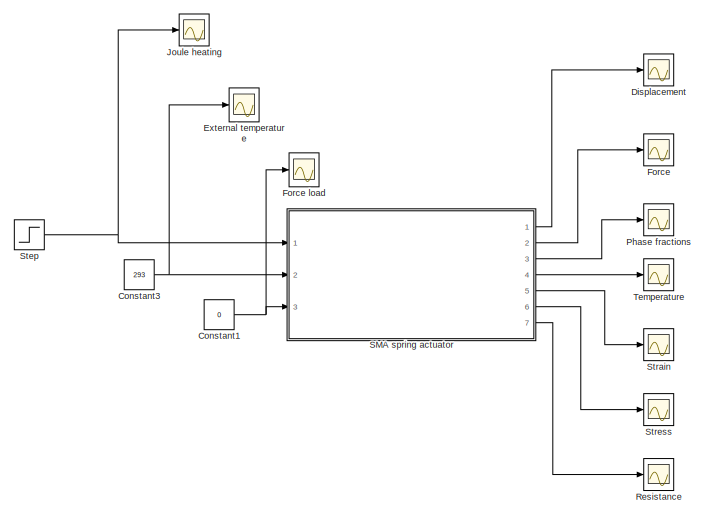
[diagram: root canvas - part 1/2, middle right region]
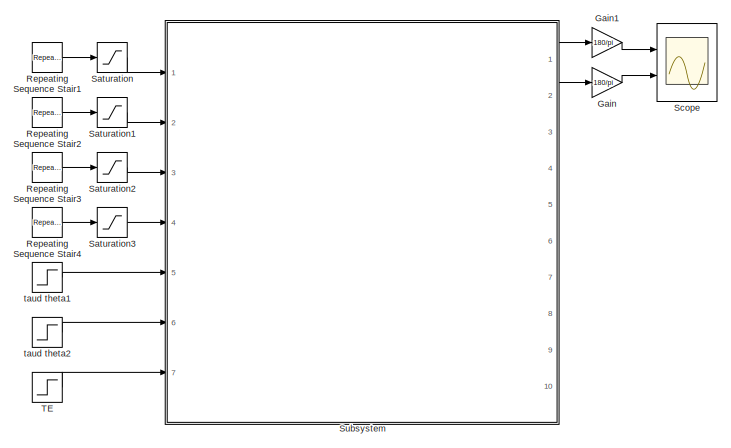
[diagram: root canvas - part 2/2, bottom left region]
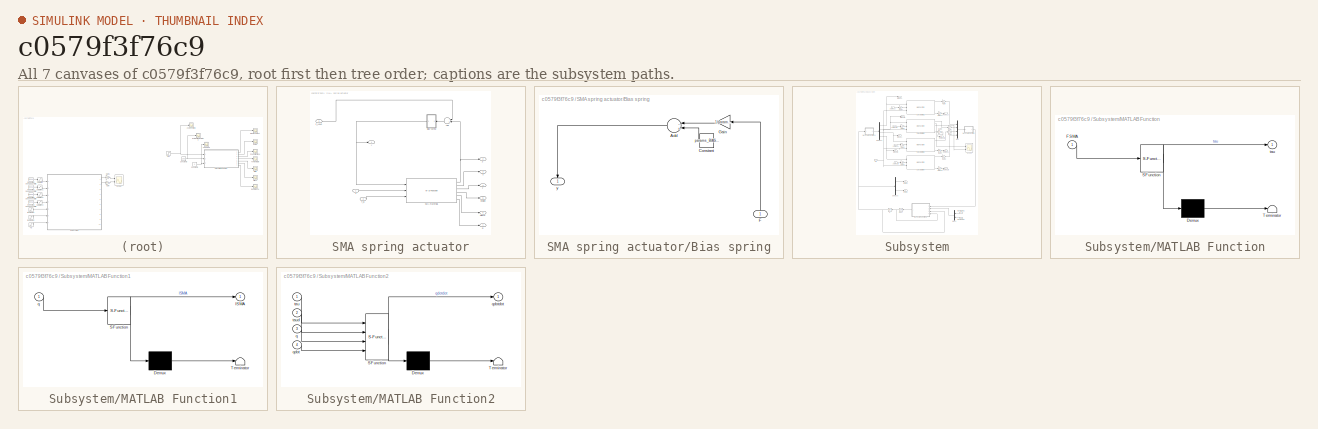
[diagram: thumbnail index - all 7 canvases of the model, root first then tree order]
MODEL slx_c0579f3f76c9
KIND model
CONFIG AbsTol = 1e-9
CONFIG EnableMultiTasking = on
CONFIG FixedStep = auto
CONFIG MaxStep = auto
CONFIG MinStep = auto
CONFIG RelTol = 1e-9
CONFIG SampleTimeConstraint = Unconstrained
CONFIG Solver = ode15s
CONFIG SolverName = ode15s
CONFIG StartTime = 0.0
CONFIG StopTime = 50
BLOCK [Scope]  Force load
  NumInputPorts = 1
  Ports = [1]
  ScopeSpecificationString = Simulink.scopes.TimeScopeBlockCfg('CurrentConfiguration', extmgr.ConfigurationSet(extmgr.Configuration('Core','General UI',true,'FigureColor',[0.156862745098039 0.156862745098039 0.156862745098039]),extmgr.Configuration('Core','Source UI',true),extmgr.Configuration('Sources','WiredSimulink',true,'DataLoggingVariableName','ScopeData1','DataLoggingSaveFormat','StructureWithTime','DataLoggingDecimati...<+2711ch>
BLOCK [Constant] Constant1
  Value = 0
BLOCK [Constant] Constant3
  Value = 293
BLOCK [Scope] Displacement
  NumInputPorts = 1
  Ports = [1]
  ScopeSpecificationString = Simulink.scopes.TimeScopeBlockCfg('CurrentConfiguration', extmgr.ConfigurationSet(extmgr.Configuration('Core','General UI',true,'FigureColor',[0.156862745098039 0.156862745098039 0.156862745098039]),extmgr.Configuration('Core','Source UI',true),extmgr.Configuration('Sources','WiredSimulink',true,'DataLoggingSaveFormat','StructureWithTime','DataLoggingDecimation','1','DataLoggingDecimateData',true)...<+2773ch>
BLOCK [Scope] External temperature
  NumInputPorts = 1
  Ports = [1]
  ScopeSpecificationString = Simulink.scopes.TimeScopeBlockCfg('CurrentConfiguration', extmgr.ConfigurationSet(extmgr.Configuration('Core','General UI',true,'FigureColor',[0.156862745098039 0.156862745098039 0.156862745098039]),extmgr.Configuration('Core','Source UI',true),extmgr.Configuration('Sources','WiredSimulink',true,'DataLoggingVariableName','ScopeData2','DataLoggingSaveFormat','StructureWithTime','DataLoggingDecimati...<+2711ch>
BLOCK [Scope] Force
  NumInputPorts = 1
  Ports = [1]
  ScopeSpecificationString = Simulink.scopes.TimeScopeBlockCfg('CurrentConfiguration', extmgr.ConfigurationSet(extmgr.Configuration('Core','General UI',true,'FigureColor',[0.156862745098039 0.156862745098039 0.156862745098039]),extmgr.Configuration('Core','Source UI',true),extmgr.Configuration('Sources','WiredSimulink',true,'DataLoggingVariableName','ScopeData3','DataLoggingSaveFormat','StructureWithTime','DataLoggingDecimati...<+2806ch>
BLOCK [Gain] Gain
  Gain = 180/pi
  OutDataTypeStr = Inherit: Inherit via internal rule
  ParamDataTypeStr = Inherit: Inherit via internal rule
  SaturateOnIntegerOverflow = off
BLOCK [Gain] Gain1
  Gain = 180/pi
  OutDataTypeStr = Inherit: Inherit via internal rule
  ParamDataTypeStr = Inherit: Inherit via internal rule
  SaturateOnIntegerOverflow = off
BLOCK [Scope] Joule heating
  NumInputPorts = 1
  Ports = [1]
  ScopeSpecificationString = Simulink.scopes.TimeScopeBlockCfg('CurrentConfiguration', extmgr.ConfigurationSet(extmgr.Configuration('Core','General UI',true,'FigureColor',[0.156862745098039 0.156862745098039 0.156862745098039]),extmgr.Configuration('Core','Source UI',true),extmgr.Configuration('Sources','WiredSimulink',true,'DataLoggingVariableName','ScopeData1','DataLoggingSaveFormat','StructureWithTime','DataLoggingDecimati...<+2711ch>
BLOCK [Scope] Phase fractions
  NumInputPorts = 1
  Ports = [1]
  ScopeSpecificationString = Simulink.scopes.TimeScopeBlockCfg('CurrentConfiguration', extmgr.ConfigurationSet(extmgr.Configuration('Core','General UI',true,'FigureColor',[0.156862745098039 0.156862745098039 0.156862745098039]),extmgr.Configuration('Core','Source UI',true),extmgr.Configuration('Sources','WiredSimulink',true,'DataLoggingVariableName','ScopeData4','DataLoggingSaveFormat','StructureWithTime','DataLoggingDecimati...<+2838ch>
BLOCK [Reference] Repeating Sequence Stair1  REF=simulink/Sources/Repeating
Sequence
Stair
  Ports = [0, 1]
  SourceBlock = simulink/Sources/Repeating\nSequence\nStair
  SourceProductBaseCode = SL
  SourceProductName = Simulink
  SourceType = Repeating Sequence Stair
BLOCK [Reference] Repeating Sequence Stair2  REF=simulink/Sources/Repeating
Sequence
Stair
  Ports = [0, 1]
  SourceBlock = simulink/Sources/Repeating\nSequence\nStair
  SourceProductBaseCode = SL
  SourceProductName = Simulink
  SourceType = Repeating Sequence Stair
BLOCK [Reference] Repeating Sequence Stair3  REF=simulink/Sources/Repeating
Sequence
Stair
  Ports = [0, 1]
  SourceBlock = simulink/Sources/Repeating\nSequence\nStair
  SourceProductBaseCode = SL
  SourceProductName = Simulink
  SourceType = Repeating Sequence Stair
BLOCK [Reference] Repeating Sequence Stair4  REF=simulink/Sources/Repeating
Sequence
Stair
  Ports = [0, 1]
  SourceBlock = simulink/Sources/Repeating\nSequence\nStair
  SourceProductBaseCode = SL
  SourceProductName = Simulink
  SourceType = Repeating Sequence Stair
BLOCK [Scope] Resistance
  NumInputPorts = 1
  Ports = [1]
  ScopeSpecificationString = Simulink.scopes.TimeScopeBlockCfg('CurrentConfiguration', extmgr.ConfigurationSet(extmgr.Configuration('Core','General UI',true,'FigureColor',[0.156862745098039 0.156862745098039 0.156862745098039]),extmgr.Configuration('Core','Source UI',true),extmgr.Configuration('Sources','WiredSimulink',true,'DataLoggingVariableName','ScopeData8','DataLoggingSaveFormat','StructureWithTime','DataLoggingDecimati...<+2818ch>
BLOCK [SubSystem] SMA spring actuator
  Ports = [3, 7]
  RequestExecContextInheritance = off
  Variant = off
BLOCK [Sum] SMA spring actuator/Add
  InputSameDT = off
  Inputs = -+
  OutDataTypeStr = Inherit: Inherit via internal rule
  Ports = [2, 1]
  SaturateOnIntegerOverflow = off
BLOCK [SubSystem] SMA spring actuator/Bias spring
  Ports = [1, 1]
  RequestExecContextInheritance = off
  Variant = off
BLOCK [Sum] SMA spring actuator/Bias spring/Add
  InputSameDT = off
  Inputs = -+
  OutDataTypeStr = Inherit: Inherit via internal rule
  Ports = [2, 1]
  SaturateOnIntegerOverflow = off
BLOCK [Constant] SMA spring actuator/Bias spring/Constant
  Value = params_BIAS.y0s
BLOCK [Inport] SMA spring actuator/Bias spring/F
  IconDisplay = Port number
BLOCK [Gain] SMA spring actuator/Bias spring/Gain
  Gain = 1/params_BIAS.ks
  OutDataTypeStr = Inherit: Inherit via internal rule
  ParamDataTypeStr = Inherit: Inherit via internal rule
  SaturateOnIntegerOverflow = off
BLOCK [Outport] SMA spring actuator/Bias spring/y
  IconDisplay = Port number
BLOCK [Outport] SMA spring actuator/F
  IconDisplay = Port number
  Port = 2
BLOCK [Inport] SMA spring actuator/F_LOAD
  IconDisplay = Port number
  Port = 3
BLOCK [Inport] SMA spring actuator/J
  IconDisplay = Port number
BLOCK [Outport] SMA spring actuator/R
  IconDisplay = Port number
  Port = 7
BLOCK [M-S-Function] SMA spring actuator/SMA material1
  FunctionName = sSMA_displacementIn_PC2
  Parameters = params_PC2, initConds_PC2
  Ports = [3, 6]
BLOCK [Outport] SMA spring actuator/T
  IconDisplay = Port number
  Port = 4
BLOCK [Inport] SMA spring actuator/T_E
  IconDisplay = Port number
  Port = 2
BLOCK [Outport] SMA spring actuator/epsilon
  IconDisplay = Port number
  Port = 5
BLOCK [Outport] SMA spring actuator/sigma
  IconDisplay = Port number
  Port = 6
BLOCK [Outport] SMA spring actuator/x
  IconDisplay = Port number
  Port = 3
BLOCK [Outport] SMA spring actuator/y
  IconDisplay = Port number
BLOCK [Saturate] Saturation
  InputPortMap = u0
  LowerLimit = 0
  Ports = [1, 1]
  UpperLimit = 2
BLOCK [Saturate] Saturation1
  InputPortMap = u0
  LowerLimit = 0
  Ports = [1, 1]
  UpperLimit = 2
BLOCK [Saturate] Saturation2
  InputPortMap = u0
  LowerLimit = 0
  Ports = [1, 1]
  UpperLimit = 2
BLOCK [Saturate] Saturation3
  InputPortMap = u0
  LowerLimit = 0
  Ports = [1, 1]
  UpperLimit = 2
BLOCK [Scope] Scope
  NumInputPorts = 2
  Ports = [2]
  ScopeSpecificationString = Simulink.scopes.TimeScopeBlockCfg('CurrentConfiguration', extmgr.ConfigurationSet(extmgr.Configuration('Core','General UI',true),extmgr.Configuration('Core','Source UI',true),extmgr.Configuration('Sources','WiredSimulink',true,'DataLoggingVariableName','ScopeData1'),extmgr.Configuration('Visuals','Time Domain',true,'SerializedDisplays',{struct('MinYLimReal','-113.2892','MaxYLimReal','113.29104','Y...<+2026ch>
BLOCK [Step] Step
  After = 0.25
  SampleTime = 0
  Time = 0
BLOCK [Scope] Strain
  NumInputPorts = 1
  Ports = [1]
  ScopeSpecificationString = Simulink.scopes.TimeScopeBlockCfg('CurrentConfiguration', extmgr.ConfigurationSet(extmgr.Configuration('Core','General UI',true,'FigureColor',[0.156862745098039 0.156862745098039 0.156862745098039]),extmgr.Configuration('Core','Source UI',true),extmgr.Configuration('Sources','WiredSimulink',true,'DataLoggingVariableName','ScopeData6','DataLoggingSaveFormat','StructureWithTime','DataLoggingDecimati...<+2729ch>
BLOCK [Scope] Stress
  NumInputPorts = 1
  Ports = [1]
  ScopeSpecificationString = Simulink.scopes.TimeScopeBlockCfg('CurrentConfiguration', extmgr.ConfigurationSet(extmgr.Configuration('Core','General UI',true,'FigureColor',[0.156862745098039 0.156862745098039 0.156862745098039]),extmgr.Configuration('Core','Source UI',true),extmgr.Configuration('Sources','WiredSimulink',true,'DataLoggingVariableName','ScopeData7','DataLoggingSaveFormat','StructureWithTime','DataLoggingDecimati...<+2759ch>
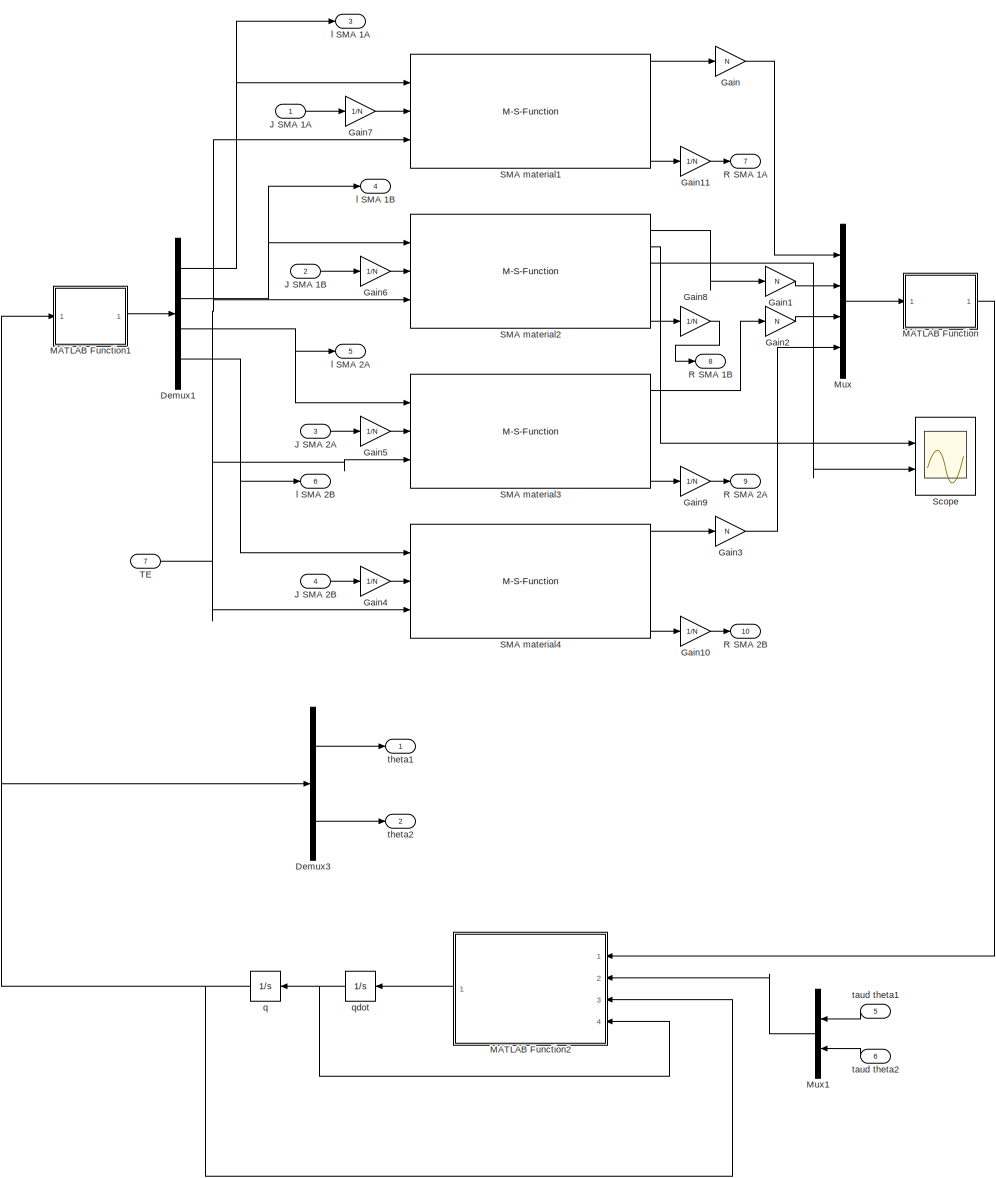
[diagram: Subsystem - part 1/1, most of the canvas]
BLOCK [SubSystem] Subsystem
  Ports = [7, 10]
  RequestExecContextInheritance = off
  Variant = off
BLOCK [Demux] Subsystem/Demux1
  DisplayOption = bar
  Ports = [1, 4]
BLOCK [Demux] Subsystem/Demux3
  DisplayOption = bar
  Outputs = 2
  Ports = [1, 2]
BLOCK [Gain] Subsystem/Gain
  Gain = N
  OutDataTypeStr = Inherit: Inherit via internal rule
  ParamDataTypeStr = Inherit: Inherit via internal rule
  SaturateOnIntegerOverflow = off
BLOCK [Gain] Subsystem/Gain1
  Gain = N
  OutDataTypeStr = Inherit: Inherit via internal rule
  ParamDataTypeStr = Inherit: Inherit via internal rule
  SaturateOnIntegerOverflow = off
BLOCK [Gain] Subsystem/Gain10
  Gain = 1/N
  OutDataTypeStr = Inherit: Inherit via internal rule
  ParamDataTypeStr = Inherit: Inherit via internal rule
  SaturateOnIntegerOverflow = off
BLOCK [Gain] Subsystem/Gain11
  Gain = 1/N
  OutDataTypeStr = Inherit: Inherit via internal rule
  ParamDataTypeStr = Inherit: Inherit via internal rule
  SaturateOnIntegerOverflow = off
BLOCK [Gain] Subsystem/Gain2
  Gain = N
  OutDataTypeStr = Inherit: Inherit via internal rule
  ParamDataTypeStr = Inherit: Inherit via internal rule
  SaturateOnIntegerOverflow = off
BLOCK [Gain] Subsystem/Gain3
  Gain = N
  OutDataTypeStr = Inherit: Inherit via internal rule
  ParamDataTypeStr = Inherit: Inherit via internal rule
  SaturateOnIntegerOverflow = off
BLOCK [Gain] Subsystem/Gain4
  Gain = 1/N
  OutDataTypeStr = Inherit: Inherit via internal rule
  ParamDataTypeStr = Inherit: Inherit via internal rule
  SaturateOnIntegerOverflow = off
BLOCK [Gain] Subsystem/Gain5
  Gain = 1/N
  OutDataTypeStr = Inherit: Inherit via internal rule
  ParamDataTypeStr = Inherit: Inherit via internal rule
  SaturateOnIntegerOverflow = off
BLOCK [Gain] Subsystem/Gain6
  Gain = 1/N
  OutDataTypeStr = Inherit: Inherit via internal rule
  ParamDataTypeStr = Inherit: Inherit via internal rule
  SaturateOnIntegerOverflow = off
BLOCK [Gain] Subsystem/Gain7
  Gain = 1/N
  OutDataTypeStr = Inherit: Inherit via internal rule
  ParamDataTypeStr = Inherit: Inherit via internal rule
  SaturateOnIntegerOverflow = off
BLOCK [Gain] Subsystem/Gain8
  Gain = 1/N
  OutDataTypeStr = Inherit: Inherit via internal rule
  ParamDataTypeStr = Inherit: Inherit via internal rule
  SaturateOnIntegerOverflow = off
BLOCK [Gain] Subsystem/Gain9
  Gain = 1/N
  OutDataTypeStr = Inherit: Inherit via internal rule
  ParamDataTypeStr = Inherit: Inherit via internal rule
  SaturateOnIntegerOverflow = off
BLOCK [Inport] Subsystem/J SMA 1A
  IconDisplay = Port number
BLOCK [Inport] Subsystem/J SMA 1B
  IconDisplay = Port number
  Port = 2
BLOCK [Inport] Subsystem/J SMA 2A
  IconDisplay = Port number
  Port = 3
BLOCK [Inport] Subsystem/J SMA 2B
  IconDisplay = Port number
  Port = 4
BLOCK [SubSystem] Subsystem/MATLAB Function
  ErrorFcn = Stateflow.Translate.translate
  PermitHierarchicalResolution = ExplicitOnly
  Ports = [1, 1]
  RequestExecContextInheritance = off
  SFBlockType = MATLAB Function
  TreatAsAtomicUnit = on
  Variant = off
BLOCK [Demux] Subsystem/MATLAB Function/ Demux 
  Outputs = 1
  Ports = [1, 1]
BLOCK [S-Function] Subsystem/MATLAB Function/ SFunction 
  EnableBusSupport = on
  FunctionName = sf_sfun
  Parameters = r1,r2
  PortCounts = [1 2]
  Ports = [1, 2]
  SFcnIsStateOwnerBlock = off
  SFunctionDeploymentMode = off
  Tag = Stateflow S-Function SMAWing 2
BLOCK [Terminator] Subsystem/MATLAB Function/ Terminator 
BLOCK [Inport] Subsystem/MATLAB Function/FSMA
  IconDisplay = Port number
BLOCK [Outport] Subsystem/MATLAB Function/tau
  IconDisplay = Port number
BLOCK [SubSystem] Subsystem/MATLAB Function1
  ErrorFcn = Stateflow.Translate.translate
  PermitHierarchicalResolution = ExplicitOnly
  Ports = [1, 1]
  RequestExecContextInheritance = off
  SFBlockType = MATLAB Function
  TreatAsAtomicUnit = on
  Variant = off
BLOCK [Demux] Subsystem/MATLAB Function1/ Demux 
  Outputs = 1
  Ports = [1, 1]
BLOCK [S-Function] Subsystem/MATLAB Function1/ SFunction 
  EnableBusSupport = on
  FunctionName = sf_sfun
  Parameters = Delta,params_PC2,r1,r2
  PortCounts = [1 2]
  Ports = [1, 2]
  SFcnIsStateOwnerBlock = off
  SFunctionDeploymentMode = off
  Tag = Stateflow S-Function SMAWing 1
BLOCK [Terminator] Subsystem/MATLAB Function1/ Terminator 
BLOCK [Outport] Subsystem/MATLAB Function1/lSMA
  IconDisplay = Port number
  VectorParamsAs1DForOutWhenUnconnected = on
BLOCK [Inport] Subsystem/MATLAB Function1/q
  IconDisplay = Port number
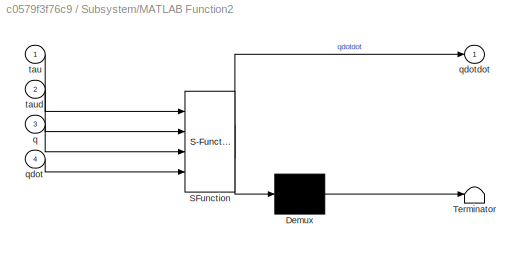
BLOCK [SubSystem] Subsystem/MATLAB Function2
  ErrorFcn = Stateflow.Translate.translate
  PermitHierarchicalResolution = ExplicitOnly
  Ports = [4, 1]
  RequestExecContextInheritance = off
  SFBlockType = MATLAB Function
  TreatAsAtomicUnit = on
  Variant = off
BLOCK [Demux] Subsystem/MATLAB Function2/ Demux 
  Outputs = 1
  Ports = [1, 1]
BLOCK [S-Function] Subsystem/MATLAB Function2/ SFunction 
  EnableBusSupport = on
  FunctionName = sf_sfun
  Parameters = I1,I2,b1,b2,l1,l2,m1,m2
  PortCounts = [4 2]
  Ports = [4, 2]
  SFcnIsStateOwnerBlock = off
  SFunctionDeploymentMode = off
  Tag = Stateflow S-Function SMAWing 3
BLOCK [Terminator] Subsystem/MATLAB Function2/ Terminator 
BLOCK [Inport] Subsystem/MATLAB Function2/q
  IconDisplay = Port number
  Port = 3
BLOCK [Inport] Subsystem/MATLAB Function2/qdot
  IconDisplay = Port number
  Port = 4
BLOCK [Outport] Subsystem/MATLAB Function2/qdotdot
  IconDisplay = Port number
  VectorParamsAs1DForOutWhenUnconnected = on
BLOCK [Inport] Subsystem/MATLAB Function2/tau
  IconDisplay = Port number
BLOCK [Inport] Subsystem/MATLAB Function2/taud
  IconDisplay = Port number
  Port = 2
BLOCK [Mux] Subsystem/Mux
  DisplayOption = bar
  Ports = [4, 1]
BLOCK [Mux] Subsystem/Mux1
  DisplayOption = bar
  Inputs = 2
  Ports = [2, 1]
BLOCK [Outport] Subsystem/R SMA 1A
  IconDisplay = Port number
  Port = 7
  VectorParamsAs1DForOutWhenUnconnected = on
BLOCK [Outport] Subsystem/R SMA 1B
  IconDisplay = Port number
  Port = 8
  VectorParamsAs1DForOutWhenUnconnected = on
BLOCK [Outport] Subsystem/R SMA 2A
  IconDisplay = Port number
  Port = 9
  VectorParamsAs1DForOutWhenUnconnected = on
BLOCK [Outport] Subsystem/R SMA 2B
  IconDisplay = Port number
  Port = 10
  VectorParamsAs1DForOutWhenUnconnected = on
BLOCK [M-S-Function] Subsystem/SMA material1
  FunctionName = sSMA_displacementIn_PC2
  Parameters = params_PC2, initConds_PC2
  Ports = [3, 6]
BLOCK [M-S-Function] Subsystem/SMA material2
  FunctionName = sSMA_displacementIn_PC2
  Parameters = params_PC2, initConds_PC2
  Ports = [3, 6]
BLOCK [M-S-Function] Subsystem/SMA material3
  FunctionName = sSMA_displacementIn_PC2
  Parameters = params_PC2, initConds_PC2
  Ports = [3, 6]
BLOCK [M-S-Function] Subsystem/SMA material4
  FunctionName = sSMA_displacementIn_PC2
  Parameters = params_PC2, initConds_PC2
  Ports = [3, 6]
BLOCK [Scope] Subsystem/Scope
  NumInputPorts = 2
  Ports = [2]
  ScopeSpecificationString = Simulink.scopes.TimeScopeBlockCfg('CurrentConfiguration', extmgr.ConfigurationSet(extmgr.Configuration('Core','General UI',true),extmgr.Configuration('Core','Source UI',true),extmgr.Configuration('Sources','WiredSimulink',true,'DataLoggingVariableName','ScopeData1'),extmgr.Configuration('Visuals','Time Domain',true,'SerializedDisplays',{struct('MinYLimReal','-0.12479','MaxYLimReal','1.12315','YLab...<+2084ch>
BLOCK [Inport] Subsystem/TE
  IconDisplay = Port number
  Port = 7
BLOCK [Outport] Subsystem/l SMA 1A
  IconDisplay = Port number
  Port = 3
  VectorParamsAs1DForOutWhenUnconnected = on
BLOCK [Outport] Subsystem/l SMA 1B
  IconDisplay = Port number
  Port = 4
  VectorParamsAs1DForOutWhenUnconnected = on
BLOCK [Outport] Subsystem/l SMA 2A
  IconDisplay = Port number
  Port = 5
  VectorParamsAs1DForOutWhenUnconnected = on
BLOCK [Outport] Subsystem/l SMA 2B
  IconDisplay = Port number
  Port = 6
  VectorParamsAs1DForOutWhenUnconnected = on
BLOCK [Integrator] Subsystem/q
  InitialCondition = [0;0]
  LowerSaturationLimit = -r
  Ports = [1, 1]
  UpperSaturationLimit = r
BLOCK [Integrator] Subsystem/qdot
  InitialCondition = [0;0]
  Ports = [1, 1]
BLOCK [Inport] Subsystem/taud theta1
  IconDisplay = Port number
  Port = 5
BLOCK [Inport] Subsystem/taud theta2
  IconDisplay = Port number
  Port = 6
BLOCK [Outport] Subsystem/theta1
  IconDisplay = Port number
  VectorParamsAs1DForOutWhenUnconnected = on
BLOCK [Outport] Subsystem/theta2
  IconDisplay = Port number
  Port = 2
  VectorParamsAs1DForOutWhenUnconnected = on
BLOCK [Step] TE
  After = 293
  Before = 293
  SampleTime = 0
  Time = 0
BLOCK [Scope] Temperature
  NumInputPorts = 1
  Ports = [1]
  ScopeSpecificationString = Simulink.scopes.TimeScopeBlockCfg('CurrentConfiguration', extmgr.ConfigurationSet(extmgr.Configuration('Core','General UI',true,'FigureColor',[0.156862745098039 0.156862745098039 0.156862745098039]),extmgr.Configuration('Core','Source UI',true),extmgr.Configuration('Sources','WiredSimulink',true,'DataLoggingVariableName','ScopeData5','DataLoggingSaveFormat','StructureWithTime','DataLoggingDecimati...<+2828ch>
BLOCK [Step] taud theta1
  After = 0
  SampleTime = 0
  Time = 0
BLOCK [Step] taud theta2
  After = 0
  SampleTime = 0
  Time = 0
NET Constant1:1 ->  Force load:1, SMA spring actuator:3
NET Constant3:1 -> External temperature:1, SMA spring actuator:2
LINE Gain1:1 -> Scope:1
LINE Gain:1 -> Scope:2
LINE Repeating Sequence Stair1:1 -> Saturation:1
LINE Repeating Sequence Stair2:1 -> Saturation1:1
LINE Repeating Sequence Stair3:1 -> Saturation2:1
LINE Repeating Sequence Stair4:1 -> Saturation3:1
LINE SMA spring actuator/Add:1 -> SMA spring actuator/Bias spring:1
LINE SMA spring actuator/Bias spring/Add:1 -> SMA spring actuator/Bias spring/y:1
LINE SMA spring actuator/Bias spring/Constant:1 -> SMA spring actuator/Bias spring/Add:2
LINE SMA spring actuator/Bias spring/F:1 -> SMA spring actuator/Bias spring/Gain:1
LINE SMA spring actuator/Bias spring/Gain:1 -> SMA spring actuator/Bias spring/Add:1
NET SMA spring actuator/Bias spring:1 -> SMA spring actuator/SMA material1:1, SMA spring actuator/y:1
LINE SMA spring actuator/F_LOAD:1 -> SMA spring actuator/Add:1
LINE SMA spring actuator/J:1 -> SMA spring actuator/SMA material1:2
NET SMA spring actuator/SMA material1:1 -> SMA spring actuator/Add:2, SMA spring actuator/F:1
LINE SMA spring actuator/SMA material1:2 -> SMA spring actuator/x:1
LINE SMA spring actuator/SMA material1:3 -> SMA spring actuator/T:1
LINE SMA spring actuator/SMA material1:4 -> SMA spring actuator/epsilon:1
LINE SMA spring actuator/SMA material1:5 -> SMA spring actuator/sigma:1
LINE SMA spring actuator/SMA material1:6 -> SMA spring actuator/R:1
LINE SMA spring actuator/T_E:1 -> SMA spring actuator/SMA material1:3
LINE SMA spring actuator:1 -> Displacement:1
LINE SMA spring actuator:2 -> Force:1
LINE SMA spring actuator:3 -> Phase fractions:1
LINE SMA spring actuator:4 -> Temperature:1
LINE SMA spring actuator:5 -> Strain:1
LINE SMA spring actuator:6 -> Stress:1
LINE SMA spring actuator:7 -> Resistance:1
LINE Saturation1:1 -> Subsystem:2
LINE Saturation2:1 -> Subsystem:3
LINE Saturation3:1 -> Subsystem:4
LINE Saturation:1 -> Subsystem:1
NET Step:1 -> Joule heating:1, SMA spring actuator:1
NET Subsystem/Demux1:1 -> Subsystem/SMA material1:1, Subsystem/l SMA 1A:1
NET Subsystem/Demux1:2 -> Subsystem/SMA material2:1, Subsystem/l SMA 1B:1
NET Subsystem/Demux1:3 -> Subsystem/SMA material3:1, Subsystem/l SMA 2A:1
NET Subsystem/Demux1:4 -> Subsystem/SMA material4:1, Subsystem/l SMA 2B:1
LINE Subsystem/Demux3:1 -> Subsystem/theta1:1
LINE Subsystem/Demux3:2 -> Subsystem/theta2:1
LINE Subsystem/Gain10:1 -> Subsystem/R SMA 2B:1
LINE Subsystem/Gain11:1 -> Subsystem/R SMA 1A:1
LINE Subsystem/Gain1:1 -> Subsystem/Mux:2
LINE Subsystem/Gain2:1 -> Subsystem/Mux:3
LINE Subsystem/Gain3:1 -> Subsystem/Mux:4
LINE Subsystem/Gain4:1 -> Subsystem/SMA material4:2
LINE Subsystem/Gain5:1 -> Subsystem/SMA material3:2
LINE Subsystem/Gain6:1 -> Subsystem/SMA material2:2
LINE Subsystem/Gain7:1 -> Subsystem/SMA material1:2
LINE Subsystem/Gain8:1 -> Subsystem/R SMA 1B:1
LINE Subsystem/Gain9:1 -> Subsystem/R SMA 2A:1
LINE Subsystem/Gain:1 -> Subsystem/Mux:1
LINE Subsystem/J SMA 1A:1 -> Subsystem/Gain7:1
LINE Subsystem/J SMA 1B:1 -> Subsystem/Gain6:1
LINE Subsystem/J SMA 2A:1 -> Subsystem/Gain5:1
LINE Subsystem/J SMA 2B:1 -> Subsystem/Gain4:1
LINE Subsystem/MATLAB Function1:1 -> Subsystem/Demux1:1
LINE Subsystem/MATLAB Function2:1 -> Subsystem/qdot:1
LINE Subsystem/MATLAB Function:1 -> Subsystem/MATLAB Function2:1
LINE Subsystem/Mux1:1 -> Subsystem/MATLAB Function2:2
LINE Subsystem/Mux:1 -> Subsystem/MATLAB Function:1
LINE Subsystem/SMA material1:1 -> Subsystem/Gain:1
LINE Subsystem/SMA material1:6 -> Subsystem/Gain11:1
LINE Subsystem/SMA material2:1 -> Subsystem/Gain1:1
LINE Subsystem/SMA material2:2 -> Subsystem/Scope:1
LINE Subsystem/SMA material2:3 -> Subsystem/Scope:2
LINE Subsystem/SMA material2:6 -> Subsystem/Gain8:1
LINE Subsystem/SMA material3:1 -> Subsystem/Gain2:1
LINE Subsystem/SMA material3:6 -> Subsystem/Gain9:1
LINE Subsystem/SMA material4:1 -> Subsystem/Gain3:1
LINE Subsystem/SMA material4:6 -> Subsystem/Gain10:1
NET Subsystem/TE:1 -> Subsystem/SMA material1:3, Subsystem/SMA material2:3, Subsystem/SMA material3:3, Subsystem/SMA material4:3
NET Subsystem/q:1 -> Subsystem/Demux3:1, Subsystem/MATLAB Function1:1, Subsystem/MATLAB Function2:3
NET Subsystem/qdot:1 -> Subsystem/MATLAB Function2:4, Subsystem/q:1
LINE Subsystem/taud theta1:1 -> Subsystem/Mux1:1
LINE Subsystem/taud theta2:1 -> Subsystem/Mux1:2
LINE Subsystem:1 -> Gain1:1
LINE Subsystem:2 -> Gain:1
LINE TE:1 -> Subsystem:7
LINE taud theta1:1 -> Subsystem:5
LINE taud theta2:1 -> Subsystem:6
note: NET lines group one-source signal fan-out (src -> all destinations, sorted); 1:1 wires keep LINE
CHART Subsystem/MATLAB Function1 states=1 transitions=1
  STATE_LABEL 'eML_blk_kernel()'
  STATE_LABEL 'SCRIPT:\nfunction lSMA = fcn(q, params_PC2, Delta, r1, r2)\n\nq1 = q(1);\nq2 = q(2);\nl0 = params_PC2.L0;\n\nlSMA1A = max(l0,l0 + Delta - r1*q1);\nlSMA1B = max(l0,l0 + Delta + r1*q1);\nlSMA2A = max(l0,l0 + Delta - r2*q2);\nlSMA2B = max(l0,l0 + Delta + r2*q2);\n\nlSMA = [lSMA1A;\n    lSMA1B;\n    lSMA2A;\n    lSMA2B];'
CHART Subsystem/MATLAB Function states=1 transitions=1
  STATE_LABEL 'eML_blk_kernel()'
  STATE_LABEL "SCRIPT:\nfunction tau  = fcn(FSMA, r1, r2)\n\nFSMA = reshape(FSMA,length(FSMA),1);\n\nJ = [-r1 0;\n    r1 0;\n    0 -r2;\n    0 r2];\n\ntau = -J'*FSMA;\n"
CHART Subsystem/MATLAB Function2 states=1 transitions=1
  STATE_LABEL 'eML_blk_kernel()'
  STATE_LABEL 'SCRIPT:\nfunction qdotdot = fcn(tau, taud, q, qdot, l2, m1, m2, I1, I2, l1, b1, b2)\n\n\nq1 = q(1);\nq2 = q(2);\ndq1 = qdot(1);\ndq2 = qdot(2);\n\ntau = reshape(tau,length(tau),1);\ntaud = reshape(taud,length(taud),1);\n\nM11 = m1*l1^2/4 + I1 + m2*l1^2 + m2*l2^2/4 + m2*l1*l2*cos(q2);\nM12 = m2*l2^2/4 + 1/2*m2*l1*l2*cos(q2);\nM22 = m2*l2^2/4 + I2;\nMi = 1/(M11*M22 - M12^2)*[M22 -M12;-M12 M11];\nC = [-m2*l1*l2*(dq1...<+115ch>'
